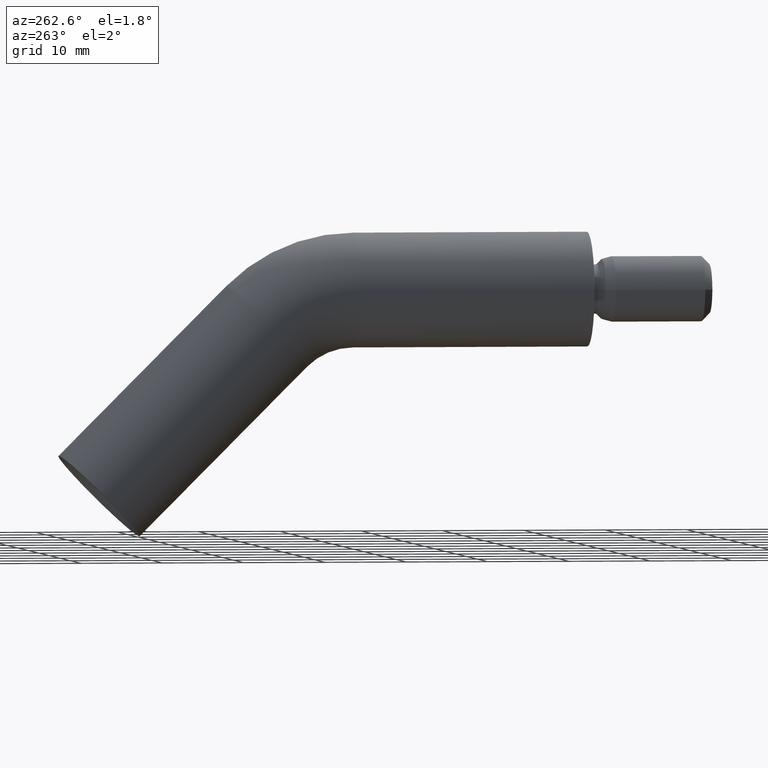
[diagram: clean part render]
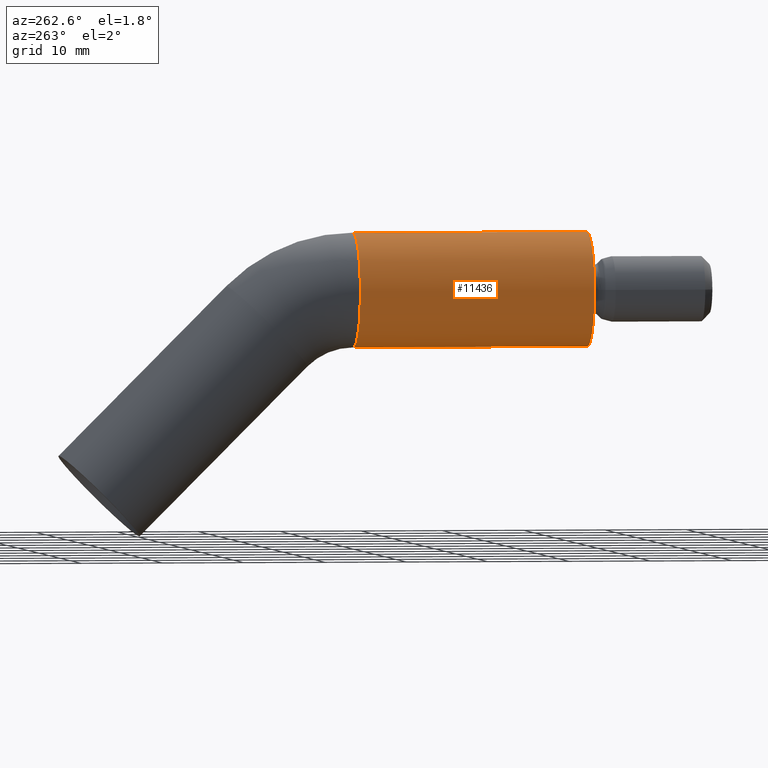
[diagram: same view with one face highlighted and labeled with its STEP entity id]
A machine part, auxiliary view. The second image highlights one B-rep face of the part: STEP entity #11436.
In plain terms, the highlighted cylindrical surface (partial cylindrical patch) has radius 7 mm, axis along (-0, -1, -0).
Its self-contained STEP definition (entity closure, byte-faithful):
#678 = EDGE_CURVE ( 'NONE', #6059, #10663, #10257, .T. ) ;
#1046 = DIRECTION ( 'NONE',  ( 0.0000000000000000000, 0.0000000000000000000, -1.000000000000000000 ) ) ;
#2246 = DIRECTION ( 'NONE',  ( 0.0000000000000000000, 0.0000000000000000000, -1.000000000000000000 ) ) ;
#3786 = VECTOR ( 'NONE', #7648, 1000.000000000000000 ) ;
#3857 = CIRCLE ( 'NONE', #9545, 7.000000000000000000 ) ;
#3927 = VECTOR ( 'NONE', #9784, 1000.000000000000000 ) ;
#4243 = DIRECTION ( 'NONE',  ( -0.0000000000000000000, -1.000000000000000000, -0.0000000000000000000 ) ) ;
#4653 = ORIENTED_EDGE ( 'NONE', *, *, #9637, .F. ) ;
#5291 = CIRCLE ( 'NONE', #11819, 7.000000000000000000 ) ;
#5358 = DIRECTION ( 'NONE',  ( -0.0000000000000000000, -1.000000000000000000, -0.0000000000000000000 ) ) ;
#6059 = VERTEX_POINT ( 'NONE', #8245 ) ;
#6101 = ORIENTED_EDGE ( 'NONE', *, *, #678, .T. ) ;
#6562 = CARTESIAN_POINT ( 'NONE',  ( 0.0000000000000000000, 28.78679656440364800, -7.000000000000000000 ) ) ;
#6693 = EDGE_CURVE ( 'NONE', #8469, #13227, #6694, .T. ) ;
#6694 = LINE ( 'NONE', #8817, #3927 ) ;
#6797 = CARTESIAN_POINT ( 'NONE',  ( 0.0000000000000000000, 0.0000000000000000000, -7.000000000000000000 ) ) ;
#7080 = FACE_OUTER_BOUND ( 'NONE', #11417, .T. ) ;
#7648 = DIRECTION ( 'NONE',  ( -0.0000000000000000000, -1.000000000000000000, -0.0000000000000000000 ) ) ;
#8134 = ORIENTED_EDGE ( 'NONE', *, *, #11493, .F. ) ;
#8245 = CARTESIAN_POINT ( 'NONE',  ( 0.0000000000000000000, 28.78679656440364800, -7.000000000000000000 ) ) ;
#8469 = VERTEX_POINT ( 'NONE', #10189 ) ;
#8817 = CARTESIAN_POINT ( 'NONE',  ( 8.572527594031473200E-016, 28.78679656440364800, 7.000000000000000000 ) ) ;
#9545 = AXIS2_PLACEMENT_3D ( 'NONE', #13364, #10368, #11281 ) ;
#9637 = EDGE_CURVE ( 'NONE', #6059, #8469, #3857, .T. ) ;
#9784 = DIRECTION ( 'NONE',  ( -0.0000000000000000000, -1.000000000000000000, -0.0000000000000000000 ) ) ;
#10189 = CARTESIAN_POINT ( 'NONE',  ( 8.572527594031473200E-016, 28.78679656440364800, 7.000000000000000000 ) ) ;
#10227 = ORIENTED_EDGE ( 'NONE', *, *, #6693, .F. ) ;
#10257 = LINE ( 'NONE', #6562, #3786 ) ;
#10368 = DIRECTION ( 'NONE',  ( 0.0000000000000000000, 1.000000000000000000, 0.0000000000000000000 ) ) ;
#10663 = VERTEX_POINT ( 'NONE', #6797 ) ;
#11281 = DIRECTION ( 'NONE',  ( 0.0000000000000000000, 0.0000000000000000000, 1.000000000000000000 ) ) ;
#11417 = EDGE_LOOP ( 'NONE', ( #10227, #4653, #6101, #8134 ) ) ;
#11436 = ADVANCED_FACE ( 'NONE', ( #7080 ), #12250, .T. ) ;
#11453 = CARTESIAN_POINT ( 'NONE',  ( 8.572527594031473200E-016, 0.0000000000000000000, 7.000000000000000000 ) ) ;
#11493 = EDGE_CURVE ( 'NONE', #13227, #10663, #5291, .T. ) ;
#11503 = CARTESIAN_POINT ( 'NONE',  ( 0.0000000000000000000, 28.78679656440364800, 0.0000000000000000000 ) ) ;
#11602 = CARTESIAN_POINT ( 'NONE',  ( 0.0000000000000000000, 0.0000000000000000000, 0.0000000000000000000 ) ) ;
#11819 = AXIS2_PLACEMENT_3D ( 'NONE', #11602, #5358, #1046 ) ;
#12250 = CYLINDRICAL_SURFACE ( 'NONE', #12954, 7.000000000000000000 ) ;
#12954 = AXIS2_PLACEMENT_3D ( 'NONE', #11503, #4243, #2246 ) ;
#13227 = VERTEX_POINT ( 'NONE', #11453 ) ;
#13364 = CARTESIAN_POINT ( 'NONE',  ( 0.0000000000000000000, 28.78679656440364800, 0.0000000000000000000 ) ) ;